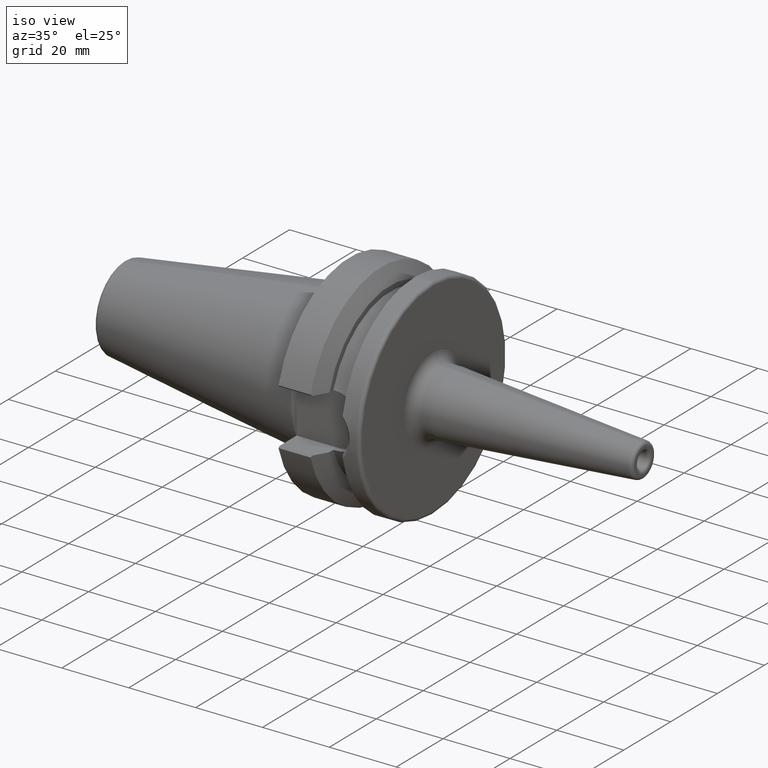
[diagram: clean part render]
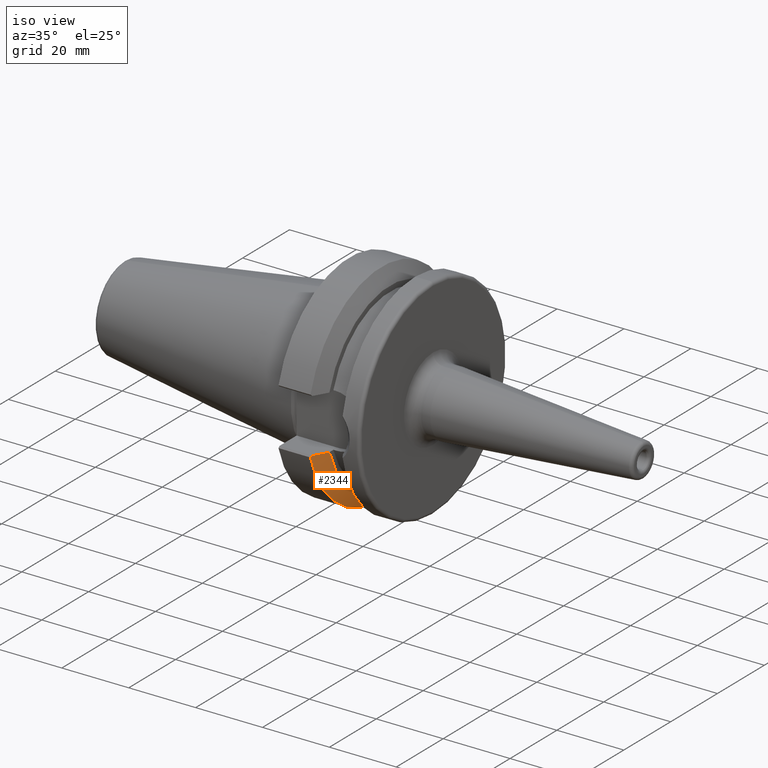
[diagram: same view with one face highlighted and labeled with its STEP entity id]
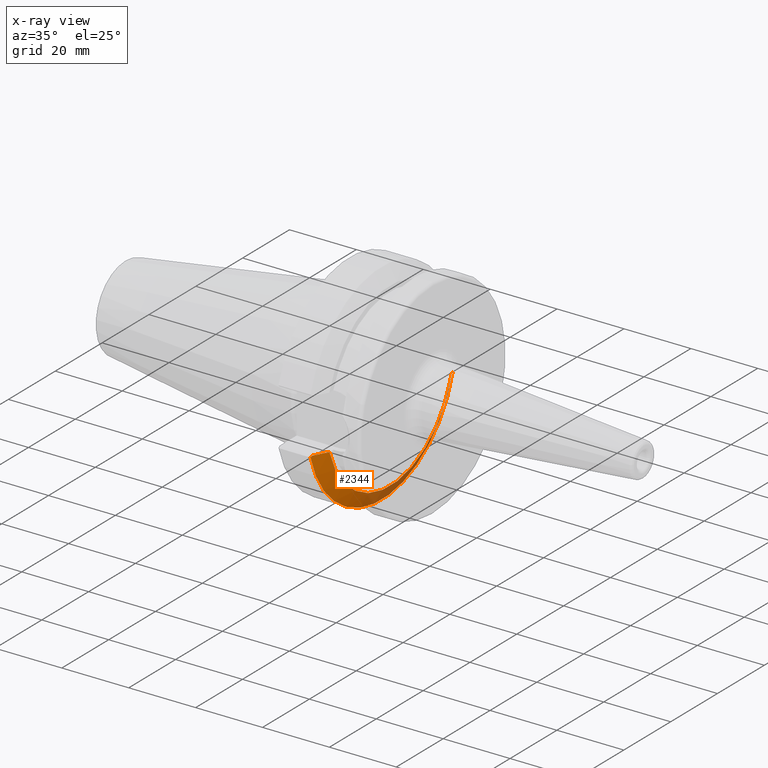
[diagram: x-ray of the same camera — body ghosted, the highlighted face saturated]
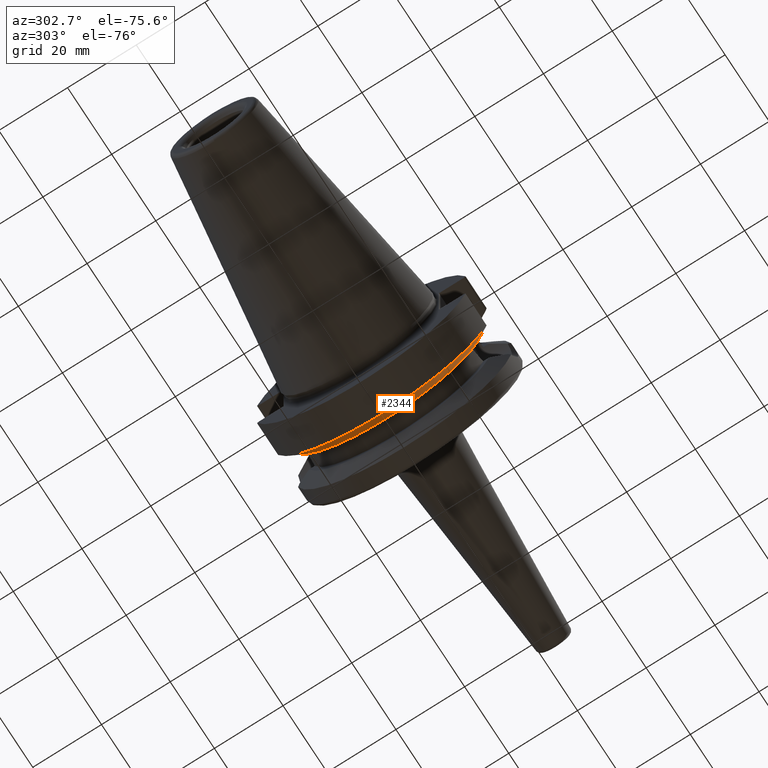
[diagram: same view with one face highlighted and labeled with its STEP entity id]
A machine part, iso view. The second image highlights one B-rep face of the part: STEP entity #2344.
The next image is the same camera in x-ray: the body ghosted, the highlighted face saturated — about 30% of this face is hidden behind the body in this view.
A second angle (auxiliary view) of the same face is appended — the face is thin or edge-on in the first view.
In plain terms, the highlighted conical surface has half-angle 60 deg.
Its self-contained STEP definition (entity closure, byte-faithful):
#821=CARTESIAN_POINT('',(1.41E1,-2.589378524176E1,-8.05E0));
#822=CARTESIAN_POINT('',(1.386450341249E1,-2.632093406585E1,-8.05E0));
#823=CARTESIAN_POINT('',(1.338588596161E1,-2.718719807101E1,-8.05E0));
#824=CARTESIAN_POINT('',(1.264535505638E1,-2.852228716965E1,-8.05E0));
#825=CARTESIAN_POINT('',(1.213636940407E1,-2.943672353446E1,-8.05E0));
#826=CARTESIAN_POINT('',(1.187809346105E1,-2.99E1,-8.05E0));
#828=CARTESIAN_POINT('',(1.41E1,0.E0,0.E0));
#829=DIRECTION('',(1.E0,0.E0,0.E0));
#830=DIRECTION('',(0.E0,-9.549178917964E-1,-2.968700387830E-1));
#831=AXIS2_PLACEMENT_3D('',#828,#829,#830);
#833=CARTESIAN_POINT('',(1.187809346105E1,2.99E1,-8.05E0));
#834=CARTESIAN_POINT('',(1.213608053432E1,2.943724168785E1,-8.05E0));
#835=CARTESIAN_POINT('',(1.264468269184E1,2.852349654788E1,-8.05E0));
#836=CARTESIAN_POINT('',(1.338523678300E1,2.718837129527E1,-8.05E0));
#837=CARTESIAN_POINT('',(1.386422607045E1,2.632143711487E1,-8.05E0));
#838=CARTESIAN_POINT('',(1.41E1,2.589378524176E1,-8.05E0));
#840=CARTESIAN_POINT('',(1.187809346105E1,2.99E1,-8.05E0));
#841=CARTESIAN_POINT('',(1.184412243022E1,2.994800919416E1,-8.098009194156E0));
#842=CARTESIAN_POINT('',(1.177593456126E1,3.004428424075E1,-8.194284240747E0));
#843=CARTESIAN_POINT('',(1.167291601044E1,3.018946614020E1,-8.339466140200E0));
#844=CARTESIAN_POINT('',(1.160374493301E1,3.028676841650E1,-8.436768416504E0));
#845=CARTESIAN_POINT('',(1.15690365E1,3.033554803451E1,-8.485548034509E0));
#847=CARTESIAN_POINT('',(1.15690365E1,0.E0,0.E0));
#848=DIRECTION('',(-1.E0,0.E0,0.E0));
#849=DIRECTION('',(0.E0,9.630332709368E-1,-2.693824772860E-1));
#850=AXIS2_PLACEMENT_3D('',#847,#848,#849);
#852=CARTESIAN_POINT('',(1.15690365E1,-3.033554803451E1,-8.485548034509E0));
#853=CARTESIAN_POINT('',(1.162109299730E1,-3.026238725388E1,-8.412387253883E0));
#854=CARTESIAN_POINT('',(1.172465915984E1,-3.011663519535E1,-8.266635195345E0));
#855=CARTESIAN_POINT('',(1.182713113718E1,-2.997202195639E1,-8.122021956386E0));
#856=CARTESIAN_POINT('',(1.187809346105E1,-2.99E1,-8.05E0));
#1040=CARTESIAN_POINT('',(1.41E1,2.589378524176E1,-8.05E0));
#1042=VERTEX_POINT('',#1040);
#1140=VERTEX_POINT('',#840);
#1141=VERTEX_POINT('',#845);
#1164=CARTESIAN_POINT('',(1.15690365E1,-3.033554803451E1,-8.485548034509E0));
#1166=VERTEX_POINT('',#1164);
#1178=VERTEX_POINT('',#821);
#1179=VERTEX_POINT('',#826);
#2328=CARTESIAN_POINT('',(1.283451825E1,0.E0,0.E0));
#2329=DIRECTION('',(-1.E0,0.E0,0.E0));
#2330=DIRECTION('',(0.E0,0.E0,-1.E0));
#2331=AXIS2_PLACEMENT_3D('',#2328,#2329,#2330);
#2332=CONICAL_SURFACE('',#2331,2.930812131295E1,6.E1);
#2333=ORIENTED_EDGE('',*,*,#2139,.F.);
#2335=ORIENTED_EDGE('',*,*,#2334,.T.);
#2337=ORIENTED_EDGE('',*,*,#2336,.F.);
#2339=ORIENTED_EDGE('',*,*,#2338,.T.);
#2340=ORIENTED_EDGE('',*,*,#2255,.T.);
#2341=ORIENTED_EDGE('',*,*,#2301,.T.);
#2342=EDGE_LOOP('',(#2333,#2335,#2337,#2339,#2340,#2341));
#2343=FACE_OUTER_BOUND('',#2342,.F.);
#2344=ADVANCED_FACE('',(#2343),#2332,.T.);
#827=B_SPLINE_CURVE_WITH_KNOTS('',3,(#821,#822,#823,#824,#825,#826),
.UNSPECIFIED.,.F.,.F.,(4,1,1,4),(0.E0,3.333333333333E-1,6.666666666667E-1,1.E0),
.UNSPECIFIED.);
#832=CIRCLE('',#831,2.711624262590E1);
#839=B_SPLINE_CURVE_WITH_KNOTS('',3,(#833,#834,#835,#836,#837,#838),
.UNSPECIFIED.,.F.,.F.,(4,1,1,4),(0.E0,3.333333333333E-1,6.666666666667E-1,1.E0),
.UNSPECIFIED.);
#846=B_SPLINE_CURVE_WITH_KNOTS('',3,(#840,#841,#842,#843,#844,#845),
.UNSPECIFIED.,.F.,.F.,(4,1,1,4),(0.E0,3.333333333333E-1,6.666666666667E-1,1.E0),
.UNSPECIFIED.);
#851=CIRCLE('',#850,3.15E1);
#857=B_SPLINE_CURVE_WITH_KNOTS('',3,(#852,#853,#854,#855,#856),.UNSPECIFIED.,
.F.,.F.,(4,1,4),(0.E0,5.E-1,1.E0),.UNSPECIFIED.);
#2139=EDGE_CURVE('',#1178,#1179,#827,.T.);
#2255=EDGE_CURVE('',#1141,#1166,#851,.T.);
#2301=EDGE_CURVE('',#1166,#1179,#857,.T.);
#2334=EDGE_CURVE('',#1178,#1042,#832,.T.);
#2336=EDGE_CURVE('',#1140,#1042,#839,.T.);
#2338=EDGE_CURVE('',#1140,#1141,#846,.T.);